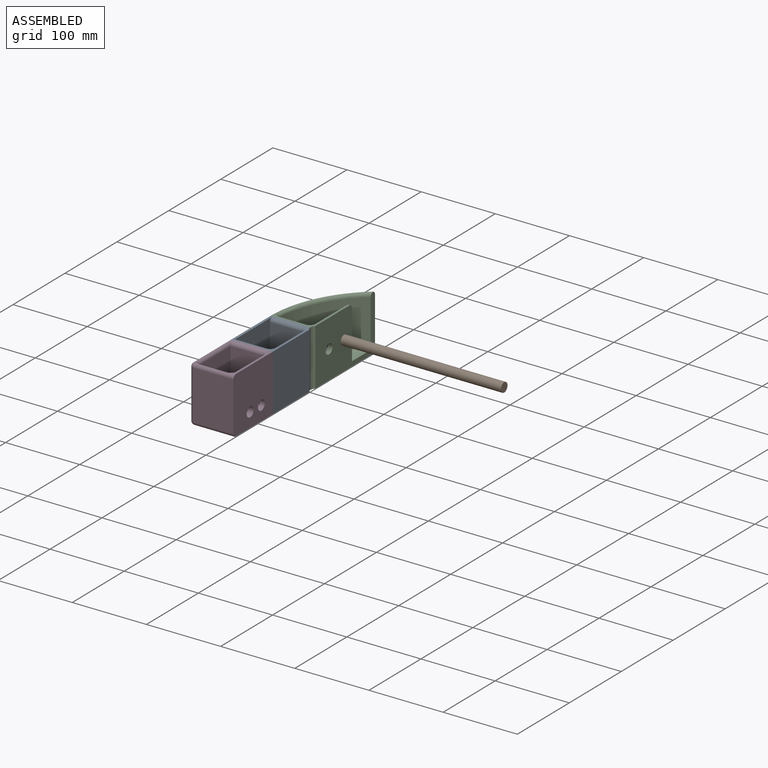
[diagram: assembled view]
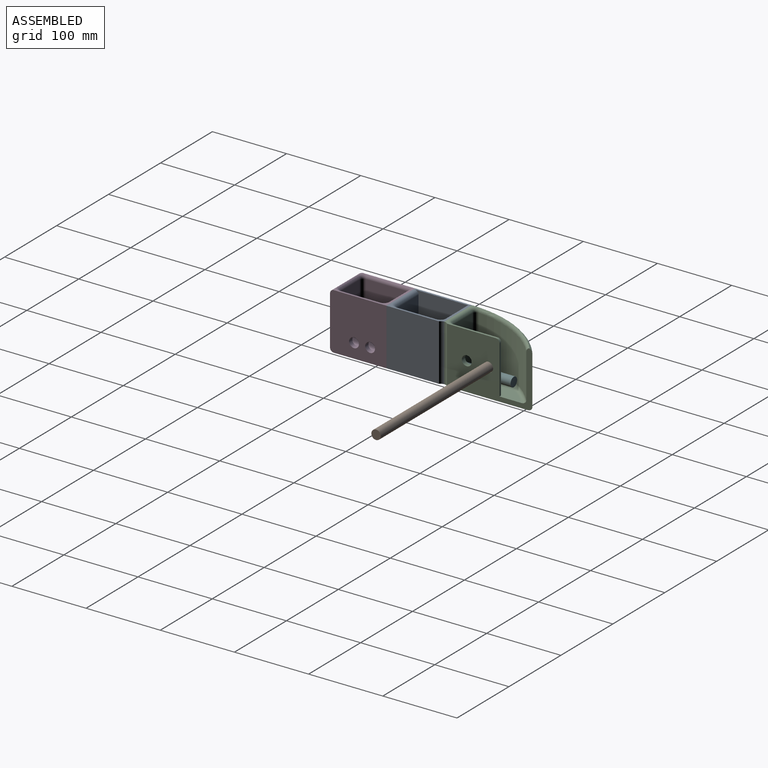
[diagram: assembled view, second angle]
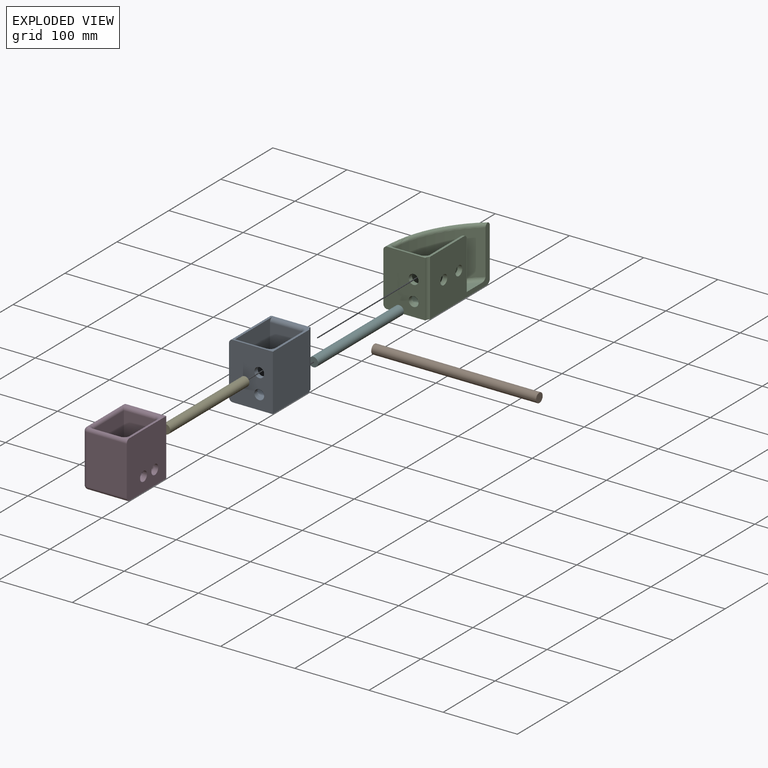
[diagram: exploded view]
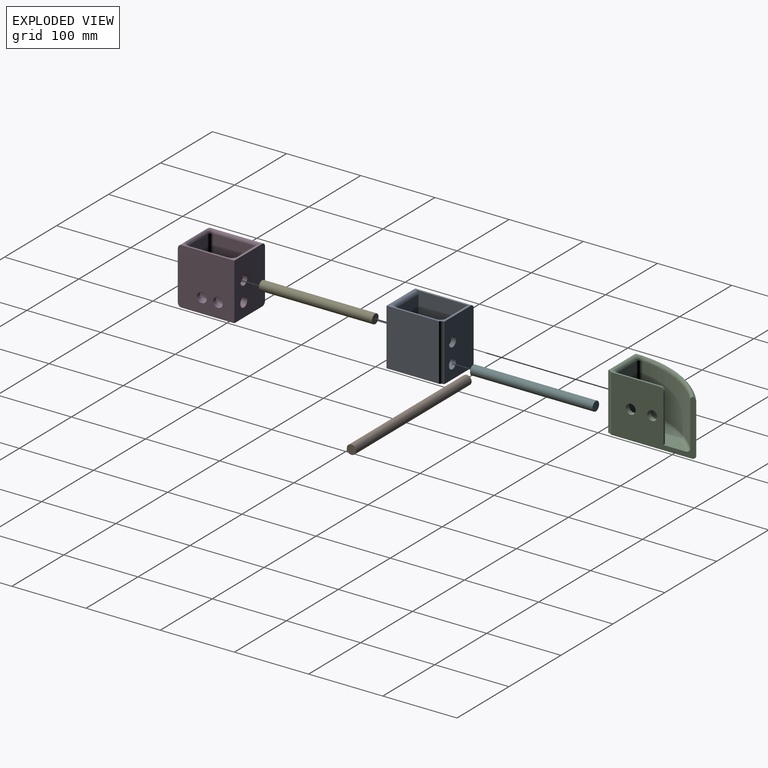
[diagram: exploded view, second angle]
ASSEMBLY  parts=6 mates=5
PART A: 31 faces, bbox 62.5x83.1x76.2 mm
  f0: plane 76.2x53.96mm, normal (0,0,-1), area 4102.6mm2, adj f2,f8,f14,f28,f30
  f1: plane 76.2x53.96mm, normal (0,0,1), area 359mm2, adj f2,f6,f8,f14,f15,f18,f21,f22
  f2: plane 76.2x70.82mm, normal (1,0,0), area 5396.5mm2, adj f0,f1,f8,f30
  f3: cylinder r=6.6mm len=13.21mm, axis (0,-1,0), area 263.5mm2, adj f10,f14
  f4: cylinder r=6.6mm len=13.21mm, axis (0,-1,0), area 263.5mm2, adj f10,f14
  f5: plane 53.34x36.18mm, normal (0,0,1), area 1930.1mm2, adj f16,f19,f23,f24
  f6: plane 73.66x64.77mm, normal (1,0,0), area 4124mm2, adj f1,f9,f10,f15,f19,f22
  f7: plane 76.2x66.04mm, normal (-1,0,0), area 5032.2mm2, adj f8,f14,f28,f29
  f8: plane 76.2x59.04mm, normal (0,-1,0), area 4214.1mm2, adj f0,f1,f2,f7,f11,f12,f28,f29
  f9: plane 59.69x41.26mm, normal (0,1,0), area 2189mm2, adj f6,f11,f12,f22,f23,f27
  f10: plane 59.69x41.26mm, normal (0,-1,0), area 2189mm2, adj f3,f4,f6,f15,f16,f17
  f11: cylinder r=6.6mm len=13.21mm, axis (0,-1,0), area 263.5mm2, adj f8,f9
  f12: cylinder r=6.6mm len=13.21mm, axis (0,-1,0), area 263.5mm2, adj f8,f9
  f13: plane 59.69x53.34mm, normal (-1,0,0), area 3183.9mm2, adj f17,f21,f24,f27
  f14: plane 76.2x56.52mm, normal (0,1,0), area 4021.3mm2, adj f0,f1,f3,f4,f7,f28,f29,f30
  f15: cylinder r=5.08mm len=41.26mm, axis (-1,0,0), area 329.3mm2, adj f1,f6,f10,f18
  f16: cylinder r=5.08mm len=41.26mm, axis (1,0,0), area 314.5mm2, adj f5,f10,f19,f20
  f17: cylinder r=5.08mm len=59.69mm, axis (0,0,1), area 476.3mm2, adj f10,f13,f18,f20
  f18: torus R=10.16mm, axis (0,0,1), area 86.8mm2, adj f1,f15,f17,f21
  f19: cylinder r=5.08mm len=63.5mm, axis (0,1,0), area 477.2mm2, adj f5,f6,f16,f23
  f20: sphere r=5.08mm, area 40.5mm2, adj f16,f17,f24
  f21: cylinder r=5.08mm len=53.34mm, axis (0,1,0), area 425.6mm2, adj f1,f13,f18,f25
  f22: cylinder r=5.08mm len=41.26mm, axis (1,0,0), area 329.3mm2, adj f1,f6,f9,f25
  f23: cylinder r=5.08mm len=41.26mm, axis (-1,0,0), area 314.5mm2, adj f5,f9,f19,f26
  f24: cylinder r=5.08mm len=53.34mm, axis (0,-1,0), area 425.6mm2, adj f5,f13,f20,f26
  f25: torus R=10.16mm, axis (0,0,1), area 86.8mm2, adj f1,f21,f22,f27
  f26: sphere r=5.08mm, area 40.5mm2, adj f23,f24,f27
  f27: cylinder r=5.08mm len=59.69mm, axis (0,0,-1), area 476.3mm2, adj f9,f13,f25,f26
  f28: cylinder r=5.08mm len=76.2mm, axis (0,-1,0), area 608mm2, adj f0,f7,f8,f14
  f29: cylinder r=5.08mm len=76.2mm, axis (0,1,0), area 608mm2, adj f1,f7,f8,f14
  f30: cylinder r=6.99mm len=76.2mm, axis (0,0,1), area 467.9mm2, adj f0,f1,f2,f14
PART B: 3 faces, bbox 222.3x12.7x12.7 mm
  f0: cylinder r=6.35mm len=222.25mm, axis (-1,0,0), area 8867.4mm2, adj f1,f2
  f1: plane 12.7x12.7mm, normal (1,0,0), area 126.7mm2, adj f0
  f2: plane 12.7x12.7mm, normal (-1,0,0), area 126.7mm2, adj f0
PART C: 30 faces, bbox 77.2x133.9x76.2 mm
  f0: plane 64.77x59.69mm, normal (-1,0,0), area 3592.1mm2, adj f2,f12,f13,f14,f19,f20
  f1: plane 64.77x1.27mm, normal (0,1,0), area 82.3mm2, adj f2,f5,f14,f15
  f2: plane 94.2x47.15mm, normal (0,0,1), area 2537.3mm2, adj f0,f1,f5,f14,f17,f18
  f3: cylinder r=146.05mm len=100.48mm, axis (0,0,-1), area 6940.7mm2, adj f5,f17,f23,f27
  f4: cylinder r=6.6mm len=13.21mm, axis (0,-1,0), area 263.5mm2, adj f9,f11
  f5: plane 115.08x76.2mm, normal (1,0,0), area 5953.3mm2, adj f1,f2,f3,f6,f7,f8,f12,f13
  f6: plane 71.12x53.96mm, normal (0,0,1), area 175.5mm2, adj f5,f11,f15,f20,f22,f24,f25,f26
  f7: cylinder r=152.4mm len=120.46mm, axis (0,0,-1), area 9173.7mm2, adj f5,f11,f26,f28
  f8: plane 113.96x53.96mm, normal (0,0,-1), area 4268.9mm2, adj f5,f11,f28,f29
  f9: plane 59.69x35.72mm, normal (0,1,0), area 1858.1mm2, adj f4,f10,f18,f19,f23,f24
  f10: cylinder r=6.6mm len=13.21mm, axis (0,-1,0), area 263.5mm2, adj f9,f11
  f11: plane 76.2x56.52mm, normal (0,-1,0), area 4021.3mm2, adj f4,f6,f7,f8,f10,f26,f28,f29
  f12: cylinder r=6.6mm len=13.21mm, axis (-1,0,0), area 263.5mm2, adj f0,f5
  f13: cylinder r=6.6mm len=13.21mm, axis (-1,0,0), area 263.5mm2, adj f0,f5
  f14: cylinder r=5.08mm len=64.77mm, axis (0,0,1), area 516.8mm2, adj f0,f1,f2,f16
  f15: cylinder r=5.08mm len=5.08mm, axis (1,0,0), area 10.1mm2, adj f1,f5,f6,f16
  f16: sphere r=5.08mm, area 40.5mm2, adj f14,f15,f20
  f17: torus R=140.97mm, axis (0,0,1), area 903.8mm2, adj f2,f3,f5,f21
  f18: cylinder r=5.08mm len=40.8mm, axis (-1,0,0), area 310.8mm2, adj f2,f9,f19,f21
  f19: cylinder r=5.08mm len=64.77mm, axis (0,0,-1), area 502.1mm2, adj f0,f9,f18,f22
  f20: cylinder r=5.08mm len=59.69mm, axis (0,1,0), area 476.3mm2, adj f0,f6,f16,f22
  f21: sphere r=5.08mm, area 42.6mm2, adj f17,f18,f23
  f22: torus R=10.16mm, axis (0,0,1), area 86.8mm2, adj f6,f19,f20,f24
  f23: cylinder r=5.08mm len=59.69mm, axis (0,0,-1), area 500.9mm2, adj f3,f9,f21,f25
  f24: cylinder r=5.08mm len=35.72mm, axis (1,0,0), area 285mm2, adj f6,f9,f22,f25
  f25: torus R=10.16mm, axis (0,0,1), area 79.8mm2, adj f6,f23,f24,f26,f27
  f26: torus R=147.32mm, axis (0,0,1), area 838.9mm2, adj f5,f6,f7,f11,f25,f27
  f27: torus R=151.13mm, axis (0,0,1), area 711.7mm2, adj f3,f5,f25,f26
  f28: torus R=147.32mm, axis (0,0,1), area 1083.5mm2, adj f5,f7,f8,f11
  f29: cylinder r=6.99mm len=76.2mm, axis (0,0,1), area 467.9mm2, adj f5,f6,f8,f11
PART D: 36 faces, bbox 62.5x83.1x76.2 mm
  f0: plane 58.42x36.18mm, normal (0,0,1), area 2113.9mm2, adj f3,f14,f15,f19
  f1: plane 71.12x66.04mm, normal (-1,0,0), area 4696.8mm2, adj f6,f16,f22,f31
  f2: plane 59.69x58.42mm, normal (1,0,0), area 3487.1mm2, adj f9,f19,f25,f33
  f3: plane 64.77x36.18mm, normal (0,1,0), area 2343.7mm2, adj f0,f17,f25,f26
  f4: plane 71.12x53.96mm, normal (0,0,-1), area 3837.9mm2, adj f6,f8,f13,f16
  f5: plane 66.04x53.96mm, normal (0,-1,0), area 3563.8mm2, adj f8,f13,f22,f27
  f6: plane 76.2x59.04mm, normal (0,1,0), area 4214.1mm2, adj f1,f4,f7,f8,f10,f11,f16,f31
  f7: plane 71.12x53.96mm, normal (0,0,1), area 183.9mm2, adj f6,f8,f21,f23,f27,f29,f31,f32
  f8: plane 76.2x76.2mm, normal (1,0,0), area 5521.3mm2, adj f4,f5,f6,f7,f13,f27,f34,f35
  f9: plane 59.69x41.26mm, normal (0,-1,0), area 2189mm2, adj f2,f10,f11,f15,f24,f32
  f10: cylinder r=6.6mm len=13.21mm, axis (0,-1,0), area 263.5mm2, adj f6,f9
  f11: cylinder r=6.6mm len=13.21mm, axis (0,-1,0), area 263.5mm2, adj f6,f9
  f12: plane 59.69x53.34mm, normal (-1,0,0), area 2909.8mm2, adj f14,f17,f23,f24,f34,f35
  f13: cylinder r=5.08mm len=53.96mm, axis (1,0,0), area 430.6mm2, adj f4,f5,f8,f20
  f14: cylinder r=5.08mm len=58.42mm, axis (0,-1,0), area 451.4mm2, adj f0,f12,f17,f18
  f15: cylinder r=5.08mm len=41.26mm, axis (1,0,0), area 314.5mm2, adj f0,f9,f18,f19
  f16: cylinder r=5.08mm len=71.12mm, axis (0,-1,0), area 567.5mm2, adj f1,f4,f6,f20
  f17: cylinder r=5.08mm len=64.77mm, axis (0,0,-1), area 502.1mm2, adj f3,f12,f14,f21
  f18: sphere r=5.08mm, area 40.5mm2, adj f14,f15,f24
  f19: cylinder r=5.08mm len=63.5mm, axis (0,1,0), area 477.2mm2, adj f0,f2,f15,f25
  f20: sphere r=5.08mm, area 40.5mm2, adj f13,f16,f22
  f21: torus R=10.16mm, axis (0,0,1), area 75.7mm2, adj f7,f17,f23,f26,f27
  f22: cylinder r=5.08mm len=66.04mm, axis (0,0,1), area 527mm2, adj f1,f5,f20,f28
  f23: cylinder r=5.08mm len=53.34mm, axis (0,1,0), area 425.6mm2, adj f7,f12,f21,f29
  f24: cylinder r=5.08mm len=59.69mm, axis (0,0,1), area 476.3mm2, adj f9,f12,f18,f29
  f25: cylinder r=5.08mm len=64.77mm, axis (0,0,-1), area 502.1mm2, adj f2,f3,f19,f30
  f26: cylinder r=5.08mm len=36.18mm, axis (1,0,0), area 218.1mm2, adj f3,f21,f27,f30
  f27: cylinder r=5.08mm len=53.96mm, axis (-1,0,0), area 340mm2, adj f5,f7,f8,f21,f26,f28,f30
  f28: sphere r=5.08mm, area 40.2mm2, adj f22,f27,f30,f31
  f29: torus R=10.16mm, axis (0,0,1), area 86.8mm2, adj f7,f23,f24,f32
  f30: torus R=10.16mm, axis (0,0,1), area 65mm2, adj f25,f26,f27,f28,f31,f33
  f31: cylinder r=5.08mm len=71.12mm, axis (0,1,0), area 435.7mm2, adj f1,f6,f7,f28,f30,f32,f33
  f32: cylinder r=5.08mm len=44.44mm, axis (-1,0,0), area 340.3mm2, adj f7,f9,f29,f31,f33
  f33: cylinder r=5.08mm len=61.6mm, axis (0,-1,0), area 358.8mm2, adj f2,f30,f31,f32
  f34: cylinder r=6.6mm len=13.21mm, axis (1,0,0), area 263.5mm2, adj f8,f12
  f35: cylinder r=6.6mm len=13.21mm, axis (1,0,0), area 263.5mm2, adj f8,f12
PART E: 3 faces, bbox 12.7x152.4x12.7 mm
  f0: cylinder r=6.35mm len=152.4mm, axis (0,-1,0), area 6080.5mm2, adj f1,f2
  f1: plane 12.7x12.7mm, normal (0,1,0), area 126.7mm2, adj f0
  f2: plane 12.7x12.7mm, normal (0,-1,0), area 126.7mm2, adj f0
PART F: 3 faces, bbox 12.7x165.1x12.7 mm
  f0: cylinder r=6.35mm len=165.1mm, axis (0,1,0), area 6587.2mm2, adj f1,f2
  f1: plane 12.7x12.7mm, normal (0,-1,0), area 126.7mm2, adj f0
  f2: plane 12.7x12.7mm, normal (0,1,0), area 126.7mm2, adj f0
PLACE A t=(0,-80.52,15.24)mm
PLACE B t=(0,-80.52,15.24)mm
PLACE C t=(0,-80.52,15.24)mm fixed
PLACE D t=(0,-80.39,15.24)mm
PLACE E t=(20.08,-144.02,42.12)mm
PLACE F t=(0,-80.39,15.24)mm
MATE fastened F.f0 <-> D.f10  axis (0,-1,0) through (-111.66,-86.74,84.9)mm
MATE slider F.f0 <-> A.f3  axis (0,1,0) through (-111.66,-4.19,84.9)mm
MATE slider E.f0 <-> A.f4  axis (0,-1,0) through (-111.66,-74.17,111.78)mm
MATE fastened E.f0 <-> C.f10  axis (0,-1,0) through (-111.66,2.03,111.78)mm
MATE fastened B.f0 <-> C.f13  axis (-1,0,0) through (-99.71,56.64,104.14)mm
